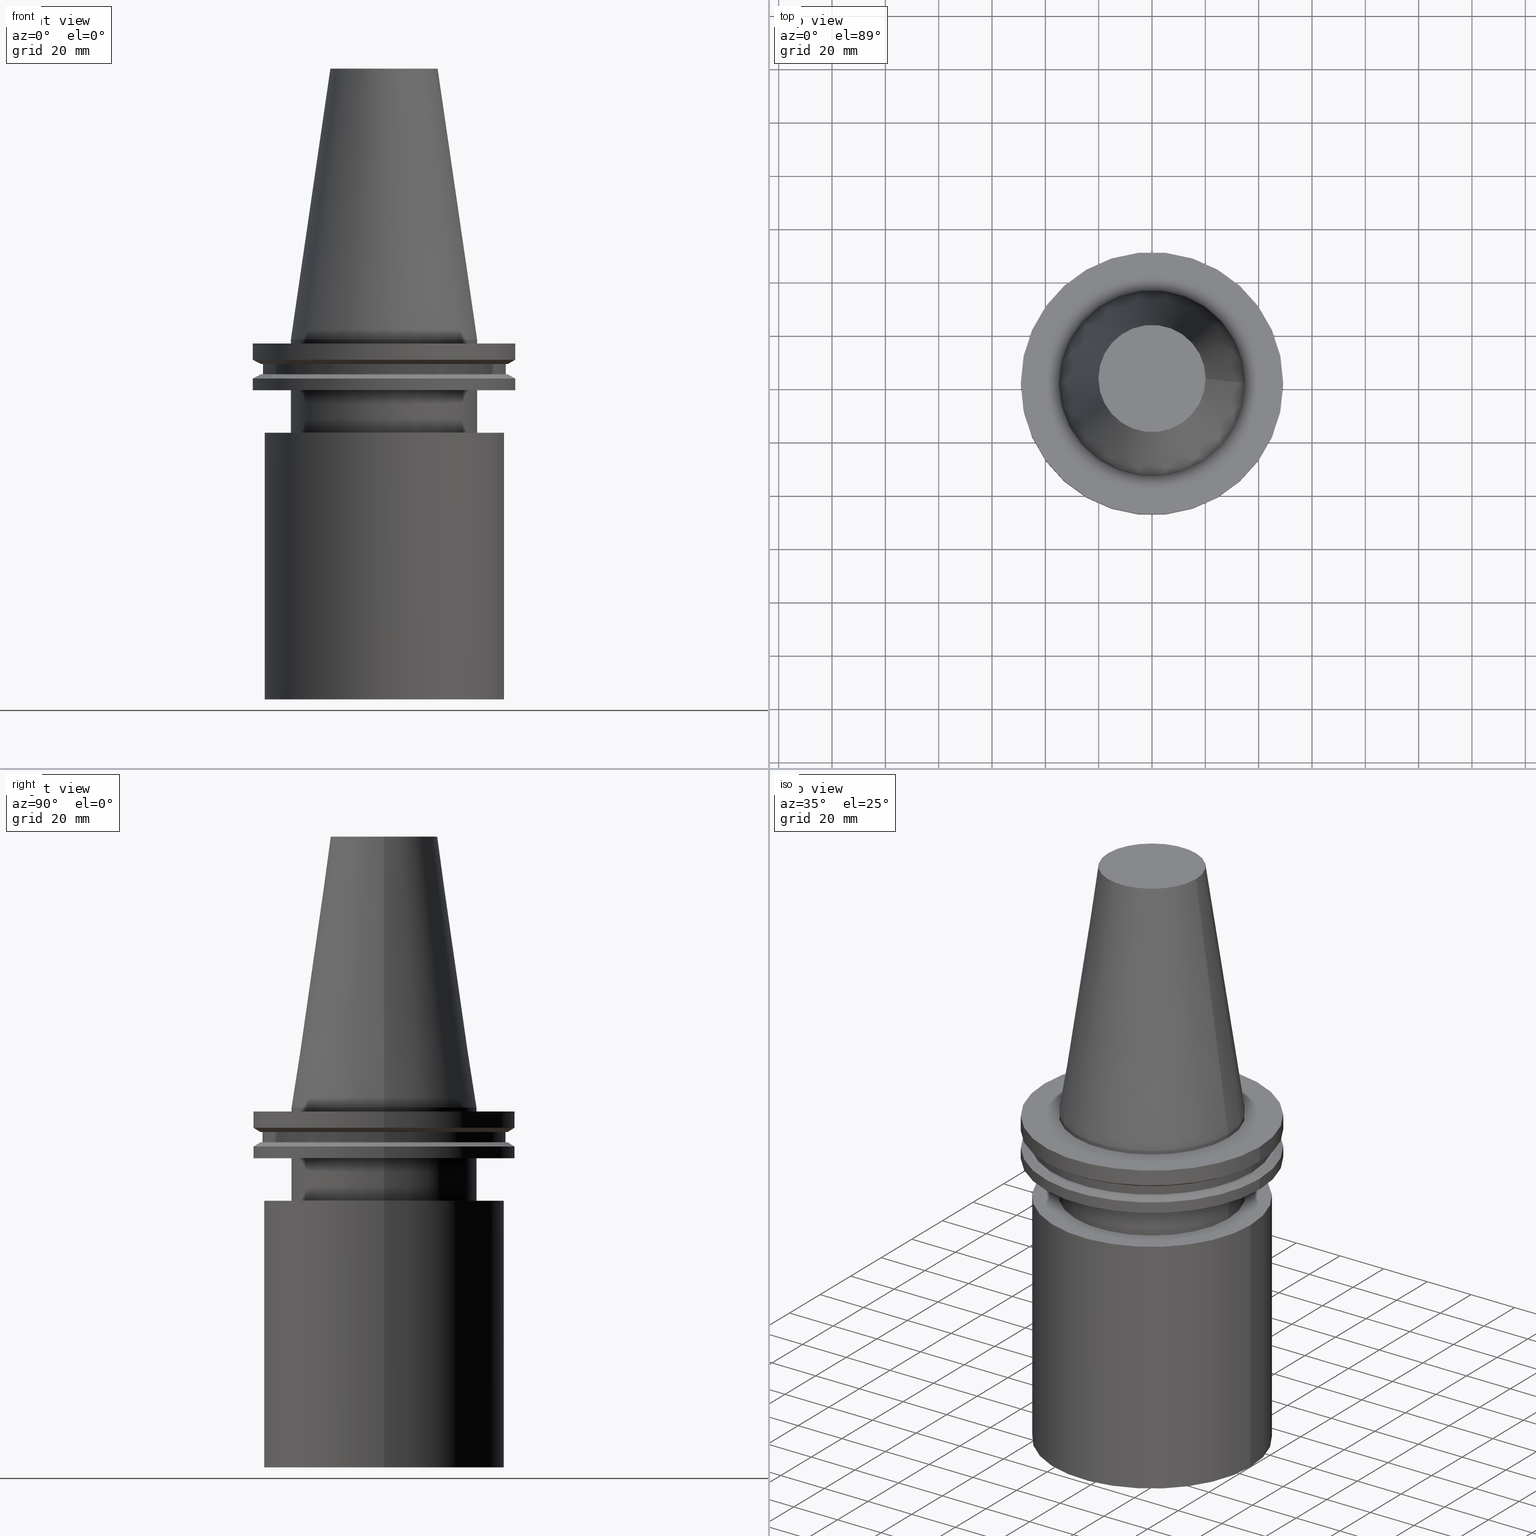
[diagram: canonical four-view strip — front | top / right | iso, engineering-drawing reading convention]
A machine part, canonical four-view strip (front | top / right | iso — engineering-drawing reading convention). The complete STEP part file that produces these views, byte-faithful:
ISO-10303-21;
HEADER;
FILE_DESCRIPTION (( 'STEP AP203' ),
    '1' );
FILE_NAME ('11.368.675.stp',
    '2022-03-09T15:23:33',
    ( '' ),
    ( '' ),
    'SwSTEP 2.0',
    'SolidWorks 2021',
    '' );
FILE_SCHEMA (( 'CONFIG_CONTROL_DESIGN' ));
ENDSEC;

DATA;
#1 = ORIENTED_EDGE ( 'NONE', *, *, #125, .F. ) ;
#2 = PLANE ( 'NONE',  #259 ) ;
#3 = ORIENTED_EDGE ( 'NONE', *, *, #329, .T. ) ;
#4 = ADVANCED_FACE ( 'NONE', ( #342, #66 ), #22, .T. ) ;
#5 =( NAMED_UNIT ( * ) SI_UNIT ( $, .STERADIAN. ) SOLID_ANGLE_UNIT ( ) );
#6 = FACE_OUTER_BOUND ( 'NONE', #307, .T. ) ;
#7 = AXIS2_PLACEMENT_3D ( 'NONE', #356, #365, #82 ) ;
#8 = EDGE_CURVE ( 'NONE', #114, #114, #382, .T. ) ;
#9 = DIRECTION ( 'NONE',  ( -0.000000000000000000, -0.000000000000000000, 1.000000000000000000 ) ) ;
#10 = CARTESIAN_POINT ( 'NONE',  ( 0.000000000000000000, 0.000000000000000000, -7.602389855251287187 ) ) ;
#11 = FACE_OUTER_BOUND ( 'NONE', #304, .T. ) ;
#12 = PRODUCT ( '11.368.675', '11.368.675', '', ( #217 ) ) ;
#13 = DIRECTION ( 'NONE',  ( 1.000000000000000000, 0.000000000000000000, 0.000000000000000000 ) ) ;
#14 = ADVANCED_FACE ( 'NONE', ( #94, #215 ), #338, .T. ) ;
#15 = DIRECTION ( 'NONE',  ( 1.000000000000000000, 0.000000000000000000, 0.000000000000000000 ) ) ;
#16 = ORGANIZATION ( 'UNSPECIFIED', 'UNSPECIFIED', '' ) ;
#17 = DIRECTION ( 'NONE',  ( -0.000000000000000000, -0.000000000000000000, 1.000000000000000000 ) ) ;
#18 = APPROVAL_DATE_TIME ( #141, #364 ) ;
#19 = DIRECTION ( 'NONE',  ( -0.000000000000000000, -0.000000000000000000, 1.000000000000000000 ) ) ;
#20 = ADVANCED_FACE ( 'NONE', ( #188, #306 ), #2, .F. ) ;
#21 = EDGE_LOOP ( 'NONE', ( #184 ) ) ;
#22 = CONICAL_SURFACE ( 'NONE', #69, 49.21499999999998920, 1.047197551196554333 ) ;
#23 = DATE_TIME_ROLE ( 'creation_date' ) ;
#24 = FACE_OUTER_BOUND ( 'NONE', #34, .T. ) ;
#25 = ORIENTED_EDGE ( 'NONE', *, *, #298, .F. ) ;
#26 = DATE_AND_TIME ( #196, #384 ) ;
#27 = CARTESIAN_POINT ( 'NONE',  ( 49.21499999999999631, 0.000000000000000000, -1.499999999999987566 ) ) ;
#28 = CIRCLE ( 'NONE', #85, 34.92499999999999005 ) ;
#29 = CARTESIAN_POINT ( 'NONE',  ( 45.00000000000000000, 0.000000000000000000, -135.0000000000000000 ) ) ;
#30 = DIRECTION ( 'NONE',  ( -1.000000000000000000, 0.000000000000000000, 0.000000000000000000 ) ) ;
#31 = APPROVAL_PERSON_ORGANIZATION ( #226, #364, #112 ) ;
#32 = CARTESIAN_POINT ( 'NONE',  ( 34.92499999999999005, 0.000000000000000000, 0.000000000000000000 ) ) ;
#33 = EDGE_LOOP ( 'NONE', ( #3 ) ) ;
#34 = EDGE_LOOP ( 'NONE', ( #139 ) ) ;
#35 = EDGE_CURVE ( 'NONE', #140, #140, #122, .T. ) ;
#36 = EDGE_LOOP ( 'NONE', ( #204 ) ) ;
#37 = CC_DESIGN_APPROVAL ( #305, ( #315 ) ) ;
#38 = DIRECTION ( 'NONE',  ( 1.000000000000000000, 0.000000000000000000, 0.000000000000000000 ) ) ;
#39 = ADVANCED_FACE ( 'NONE', ( #6, #242 ), #102, .T. ) ;
#40 = APPROVAL_STATUS ( 'not_yet_approved' ) ;
#41 = DIRECTION ( 'NONE',  ( 1.000000000000000000, 0.000000000000000000, 0.000000000000000000 ) ) ;
#42 = FACE_OUTER_BOUND ( 'NONE', #263, .T. ) ;
#43 = APPROVAL_ROLE ( '' ) ;
#44 = DIRECTION ( 'NONE',  ( -0.000000000000000000, -0.000000000000000000, 1.000000000000000000 ) ) ;
#45 = DIRECTION ( 'NONE',  ( 1.000000000000000000, 0.000000000000000000, 0.000000000000000000 ) ) ;
#46 = EDGE_CURVE ( 'NONE', #86, #86, #275, .T. ) ;
#47 = CIRCLE ( 'NONE', #299, 45.00000000000000000 ) ;
#48 = APPROVAL_ROLE ( '' ) ;
#49 = FACE_OUTER_BOUND ( 'NONE', #158, .T. ) ;
#50 = CARTESIAN_POINT ( 'NONE',  ( 34.92499999999999716, 0.000000000000000000, -19.04999999999999716 ) ) ;
#51 = DIRECTION ( 'NONE',  ( 1.000000000000000000, 0.000000000000000000, 0.000000000000000000 ) ) ;
#52 = CYLINDRICAL_SURFACE ( 'NONE', #251, 45.00000000000000000 ) ;
#53 = AXIS2_PLACEMENT_3D ( 'NONE', #189, #218, #38 ) ;
#54 = FACE_BOUND ( 'NONE', #144, .T. ) ;
#55 = LOCAL_TIME ( 9, 23, 33.00000000000000000, #260 ) ;
#56 = DIRECTION ( 'NONE',  ( 1.000000000000000000, 0.000000000000000000, 0.000000000000000000 ) ) ;
#57 = DIRECTION ( 'NONE',  ( 0.000000000000000000, 0.000000000000000000, 1.000000000000000000 ) ) ;
#58 = ORIENTED_EDGE ( 'NONE', *, *, #46, .F. ) ;
#59 = PERSON_AND_ORGANIZATION_ROLE ( 'design_owner' ) ;
#60 = ORIENTED_EDGE ( 'NONE', *, *, #361, .T. ) ;
#61 = CARTESIAN_POINT ( 'NONE',  ( 49.21499999999998920, 0.000000000000000000, -14.65761014474876944 ) ) ;
#62 = ORIENTED_EDGE ( 'NONE', *, *, #243, .T. ) ;
#63 = CIRCLE ( 'NONE', #264, 20.10819343178871321 ) ;
#64 = CARTESIAN_POINT ( 'NONE',  ( 0.000000000000000000, 0.000000000000000000, 101.5999999999999943 ) ) ;
#65 = AXIS2_PLACEMENT_3D ( 'NONE', #10, #219, #67 ) ;
#66 = FACE_OUTER_BOUND ( 'NONE', #244, .T. ) ;
#67 = DIRECTION ( 'NONE',  ( 1.000000000000000000, 0.000000000000000000, 0.000000000000000000 ) ) ;
#68 = CARTESIAN_POINT ( 'NONE',  ( 0.000000000000000000, 0.000000000000000000, -1.499999999999987566 ) ) ;
#69 = AXIS2_PLACEMENT_3D ( 'NONE', #153, #335, #30 ) ;
#70 = MANIFOLD_SOLID_BREP ( 'CKB', #311 ) ;
#71 = DIRECTION ( 'NONE',  ( 1.000000000000000000, 0.000000000000000000, 0.000000000000000000 ) ) ;
#72 = ADVANCED_FACE ( 'NONE', ( #11 ), #128, .F. ) ;
#73 = PLANE ( 'NONE',  #341 ) ;
#74 = APPROVAL_STATUS ( 'not_yet_approved' ) ;
#75 = DIRECTION ( 'NONE',  ( 1.000000000000000000, 0.000000000000000000, 0.000000000000000000 ) ) ;
#76 = AXIS2_PLACEMENT_3D ( 'NONE', #131, #9, #166 ) ;
#77 = COORDINATED_UNIVERSAL_TIME_OFFSET ( 6, 0, .BEHIND. ) ;
#78 = VERTEX_POINT ( 'NONE', #197 ) ;
#79 = ORIENTED_EDGE ( 'NONE', *, *, #313, .F. ) ;
#80 = CC_DESIGN_DATE_AND_TIME_ASSIGNMENT ( #145, #23, ( #267 ) ) ;
#81 = COORDINATED_UNIVERSAL_TIME_OFFSET ( 6, 0, .BEHIND. ) ;
#82 = DIRECTION ( 'NONE',  ( -1.000000000000000000, 0.000000000000000000, 0.000000000000000000 ) ) ;
#83 = DIRECTION ( 'NONE',  ( -0.000000000000000000, -0.000000000000000000, 1.000000000000000000 ) ) ;
#84 = EDGE_LOOP ( 'NONE', ( #343 ) ) ;
#85 = AXIS2_PLACEMENT_3D ( 'NONE', #109, #233, #257 ) ;
#86 = VERTEX_POINT ( 'NONE', #177 ) ;
#87 = DIRECTION ( 'NONE',  ( 1.000000000000000000, 0.000000000000000000, 0.000000000000000000 ) ) ;
#88 = EDGE_CURVE ( 'NONE', #297, #297, #216, .T. ) ;
#89 = ORIENTED_EDGE ( 'NONE', *, *, #88, .F. ) ;
#90 = EDGE_LOOP ( 'NONE', ( #277 ) ) ;
#91 = AXIS2_PLACEMENT_3D ( 'NONE', #68, #350, #191 ) ;
#92 = ADVANCED_FACE ( 'NONE', ( #42 ), #314, .F. ) ;
#93 = ORIENTED_EDGE ( 'NONE', *, *, #175, .F. ) ;
#94 = FACE_OUTER_BOUND ( 'NONE', #213, .T. ) ;
#95 = DIRECTION ( 'NONE',  ( -1.000000000000000000, 0.000000000000000000, -0.000000000000000000 ) ) ;
#96 = CIRCLE ( 'NONE', #393, 34.92499999999999716 ) ;
#97 = DIRECTION ( 'NONE',  ( -0.000000000000000000, -0.000000000000000000, 1.000000000000000000 ) ) ;
#98 = PRODUCT_RELATED_PRODUCT_CATEGORY ( 'detail', '', ( #12 ) ) ;
#99 = FACE_OUTER_BOUND ( 'NONE', #120, .T. ) ;
#100 = CARTESIAN_POINT ( 'NONE',  ( 0.000000000000000000, 0.000000000000000000, 101.5999999999999943 ) ) ;
#101 = ADVANCED_FACE ( 'NONE', ( #378, #99 ), #280, .T. ) ;
#102 = CONICAL_SURFACE ( 'NONE', #208, 46.43919780457007818, 1.047197551196575205 ) ;
#103 = DIRECTION ( 'NONE',  ( -0.000000000000000000, -0.000000000000000000, 1.000000000000000000 ) ) ;
#104 = DIRECTION ( 'NONE',  ( -0.000000000000000000, -0.000000000000000000, 1.000000000000000000 ) ) ;
#105 = CC_DESIGN_APPROVAL ( #195, ( #267 ) ) ;
#106 = PRODUCT_DEFINITION_SHAPE ( 'NONE', 'NONE',  #267 ) ;
#107 = FACE_OUTER_BOUND ( 'NONE', #33, .T. ) ;
#108 = PERSON_AND_ORGANIZATION ( #170, #16 ) ;
#109 = CARTESIAN_POINT ( 'NONE',  ( 0.000000000000000000, 0.000000000000000000, 0.000000000000000000 ) ) ;
#110 = ORIENTED_EDGE ( 'NONE', *, *, #175, .T. ) ;
#111 = DESIGN_CONTEXT ( 'detailed design', #172, 'design' ) ;
#112 = APPROVAL_ROLE ( '' ) ;
#113 = DIRECTION ( 'NONE',  ( 1.000000000000000000, 0.000000000000000000, 0.000000000000000000 ) ) ;
#114 = VERTEX_POINT ( 'NONE', #229 ) ;
#115 = AXIS2_PLACEMENT_3D ( 'NONE', #388, #359, #199 ) ;
#116 = AXIS2_PLACEMENT_3D ( 'NONE', #379, #44, #164 ) ;
#117 = CARTESIAN_POINT ( 'NONE',  ( 0.000000000000000000, 0.000000000000000000, -135.0000000000000000 ) ) ;
#118 = CARTESIAN_POINT ( 'NONE',  ( 46.43919780457007818, 0.000000000000000000, -13.05499999999999794 ) ) ;
#119 =( NAMED_UNIT ( * ) PLANE_ANGLE_UNIT ( ) SI_UNIT ( $, .RADIAN. ) );
#120 = EDGE_LOOP ( 'NONE', ( #238 ) ) ;
#121 = EDGE_LOOP ( 'NONE', ( #124 ) ) ;
#122 = CIRCLE ( 'NONE', #53, 46.43919780457007818 ) ;
#123 = ORIENTED_EDGE ( 'NONE', *, *, #298, .T. ) ;
#124 = ORIENTED_EDGE ( 'NONE', *, *, #88, .T. ) ;
#125 = EDGE_CURVE ( 'NONE', #265, #265, #363, .T. ) ;
#126 = DIRECTION ( 'NONE',  ( 1.000000000000000000, 0.000000000000000000, 0.000000000000000000 ) ) ;
#127 = CIRCLE ( 'NONE', #317, 45.64500000000000313 ) ;
#128 = PLANE ( 'NONE',  #246 ) ;
#129 = CYLINDRICAL_SURFACE ( 'NONE', #380, 45.64500000000000313 ) ;
#130 = ADVANCED_FACE ( 'NONE', ( #346, #224 ), #129, .T. ) ;
#131 = CARTESIAN_POINT ( 'NONE',  ( 0.000000000000000000, 0.000000000000000000, -9.204999999999991189 ) ) ;
#132 = AXIS2_PLACEMENT_3D ( 'NONE', #376, #97, #41 ) ;
#133 = PLANE ( 'NONE',  #168 ) ;
#134 = CC_DESIGN_PERSON_AND_ORGANIZATION_ASSIGNMENT ( #228, #352, ( #315 ) ) ;
#135 = VERTEX_POINT ( 'NONE', #256 ) ;
#136 = EDGE_LOOP ( 'NONE', ( #93 ) ) ;
#137 = DATE_TIME_ROLE ( 'classification_date' ) ;
#138 = FACE_OUTER_BOUND ( 'NONE', #268, .T. ) ;
#139 = ORIENTED_EDGE ( 'NONE', *, *, #46, .T. ) ;
#140 = VERTEX_POINT ( 'NONE', #261 ) ;
#141 = DATE_AND_TIME ( #255, #210 ) ;
#142 = FACE_OUTER_BOUND ( 'NONE', #84, .T. ) ;
#143 = LOCAL_TIME ( 9, 23, 33.00000000000000000, #81 ) ;
#144 = EDGE_LOOP ( 'NONE', ( #369 ) ) ;
#145 = DATE_AND_TIME ( #295, #55 ) ;
#146 = CYLINDRICAL_SURFACE ( 'NONE', #155, 34.92499999999999005 ) ;
#147 = ORIENTED_EDGE ( 'NONE', *, *, #35, .F. ) ;
#148 = CIRCLE ( 'NONE', #266, 45.00000000000000000 ) ;
#149 = ORIENTED_EDGE ( 'NONE', *, *, #329, .F. ) ;
#150 = DIRECTION ( 'NONE',  ( 1.000000000000000000, 0.000000000000000000, 0.000000000000000000 ) ) ;
#151 = CC_DESIGN_PERSON_AND_ORGANIZATION_ASSIGNMENT ( #337, #59, ( #12 ) ) ;
#152 = CARTESIAN_POINT ( 'NONE',  ( 0.000000000000000000, 0.000000000000000000, -19.04999999999999716 ) ) ;
#153 = CARTESIAN_POINT ( 'NONE',  ( 0.000000000000000000, 0.000000000000000000, -14.65761014474876944 ) ) ;
#154 = CC_DESIGN_PERSON_AND_ORGANIZATION_ASSIGNMENT ( #355, #201, ( #160 ) ) ;
#155 = AXIS2_PLACEMENT_3D ( 'NONE', #323, #332, #15 ) ;
#156 = VERTEX_POINT ( 'NONE', #32 ) ;
#157 = ORIENTED_EDGE ( 'NONE', *, *, #243, .F. ) ;
#158 = EDGE_LOOP ( 'NONE', ( #89 ) ) ;
#159 = EDGE_CURVE ( 'NONE', #135, #135, #274, .T. ) ;
#160 = PRODUCT_DEFINITION_FORMATION_WITH_SPECIFIED_SOURCE ( 'ANY', '', #12, .NOT_KNOWN. ) ;
#161 = CARTESIAN_POINT ( 'NONE',  ( 0.000000000000000000, 45.64500000000000313, -13.05499999999999794 ) ) ;
#162 = CARTESIAN_POINT ( 'NONE',  ( 0.000000000000000000, 0.000000000000000000, 101.5999999999999801 ) ) ;
#163 = APPROVAL_DATE_TIME ( #222, #195 ) ;
#164 = DIRECTION ( 'NONE',  ( 1.000000000000000000, 0.000000000000000000, 0.000000000000000000 ) ) ;
#165 = PERSON_AND_ORGANIZATION ( #170, #16 ) ;
#166 = DIRECTION ( 'NONE',  ( 1.000000000000000000, 0.000000000000000000, 0.000000000000000000 ) ) ;
#167 = DIRECTION ( 'NONE',  ( -0.000000000000000000, -0.000000000000000000, 1.000000000000000000 ) ) ;
#168 = AXIS2_PLACEMENT_3D ( 'NONE', #349, #320, #308 ) ;
#169 = FACE_OUTER_BOUND ( 'NONE', #205, .T. ) ;
#170 = PERSON ( 'UNSPECIFIED', 'UNSPECIFIED', 'UNSPECIFIED', ('UNSPECIFIED'), ('UNSPECIFIED'), ('UNSPECIFIED') ) ;
#171 = FACE_BOUND ( 'NONE', #371, .T. ) ;
#172 = APPLICATION_CONTEXT ( 'configuration controlled 3d designs of mechanical parts and assemblies' ) ;
#173 = DIRECTION ( 'NONE',  ( -1.000000000000000000, 0.000000000000000000, -0.000000000000000000 ) ) ;
#174 = DIRECTION ( 'NONE',  ( 1.000000000000000000, 0.000000000000000000, 0.000000000000000000 ) ) ;
#175 = EDGE_CURVE ( 'NONE', #385, #385, #391, .T. ) ;
#176 = PERSON_AND_ORGANIZATION_ROLE ( 'creator' ) ;
#177 = CARTESIAN_POINT ( 'NONE',  ( 34.92499999999999005, 0.000000000000000000, -1.499999999999987566 ) ) ;
#178 = EDGE_LOOP ( 'NONE', ( #25 ) ) ;
#179 = CARTESIAN_POINT ( 'NONE',  ( 0.000000000000000000, 0.000000000000000000, -35.00000000000000000 ) ) ;
#180 = EDGE_LOOP ( 'NONE', ( #200 ) ) ;
#181 = CC_DESIGN_PERSON_AND_ORGANIZATION_ASSIGNMENT ( #165, #176, ( #267 ) ) ;
#182 = CIRCLE ( 'NONE', #206, 49.21499999999998920 ) ;
#183 = VERTEX_POINT ( 'NONE', #29 ) ;
#184 = ORIENTED_EDGE ( 'NONE', *, *, #313, .T. ) ;
#185 = EDGE_LOOP ( 'NONE', ( #157 ) ) ;
#186 = EDGE_LOOP ( 'NONE', ( #147 ) ) ;
#187 = AXIS2_PLACEMENT_3D ( 'NONE', #192, #167, #45 ) ;
#188 = FACE_BOUND ( 'NONE', #180, .T. ) ;
#189 = CARTESIAN_POINT ( 'NONE',  ( 0.000000000000000000, 0.000000000000000000, -9.204999999999991189 ) ) ;
#190 = FACE_OUTER_BOUND ( 'NONE', #36, .T. ) ;
#191 = DIRECTION ( 'NONE',  ( 1.000000000000000000, 0.000000000000000000, 0.000000000000000000 ) ) ;
#192 = CARTESIAN_POINT ( 'NONE',  ( 0.000000000000000000, 0.000000000000000000, -35.00000000000000000 ) ) ;
#193 = CARTESIAN_POINT ( 'NONE',  ( 0.000000000000000000, 0.000000000000000000, -35.00000000000000000 ) ) ;
#194 = DIRECTION ( 'NONE',  ( -0.000000000000000000, -0.000000000000000000, 1.000000000000000000 ) ) ;
#195 = APPROVAL ( #40, 'UNSPECIFIED' ) ;
#196 = CALENDAR_DATE ( 2022, 9, 3 ) ;
#197 = CARTESIAN_POINT ( 'NONE',  ( 45.00000000000000000, 0.000000000000000000, -35.00000000000000000 ) ) ;
#198 = CALENDAR_DATE ( 2022, 9, 3 ) ;
#199 = DIRECTION ( 'NONE',  ( 1.000000000000000000, 0.000000000000000000, 0.000000000000000000 ) ) ;
#200 = ORIENTED_EDGE ( 'NONE', *, *, #361, .F. ) ;
#201 = PERSON_AND_ORGANIZATION_ROLE ( 'design_supplier' ) ;
#202 = ADVANCED_FACE ( 'NONE', ( #190, #250 ), #133, .F. ) ;
#203 = FACE_OUTER_BOUND ( 'NONE', #90, .T. ) ;
#204 = ORIENTED_EDGE ( 'NONE', *, *, #8, .F. ) ;
#205 = EDGE_LOOP ( 'NONE', ( #301 ) ) ;
#206 = AXIS2_PLACEMENT_3D ( 'NONE', #390, #19, #56 ) ;
#207 = CARTESIAN_POINT ( 'NONE',  ( 0.000000000000000000, 0.000000000000000000, 0.000000000000000000 ) ) ;
#208 = AXIS2_PLACEMENT_3D ( 'NONE', #367, #225, #254 ) ;
#209 = FACE_OUTER_BOUND ( 'NONE', #21, .T. ) ;
#210 = LOCAL_TIME ( 9, 23, 33.00000000000000000, #77 ) ;
#211 = DIRECTION ( 'NONE',  ( 1.000000000000000000, 0.000000000000000000, 0.000000000000000000 ) ) ;
#212 = EDGE_LOOP ( 'NONE', ( #110 ) ) ;
#213 = EDGE_LOOP ( 'NONE', ( #324 ) ) ;
#214 = VERTEX_POINT ( 'NONE', #241 ) ;
#215 = FACE_OUTER_BOUND ( 'NONE', #327, .T. ) ;
#216 = CIRCLE ( 'NONE', #116, 49.21499999999999631 ) ;
#217 = MECHANICAL_CONTEXT ( 'NONE', #310, 'mechanical' ) ;
#218 = DIRECTION ( 'NONE',  ( -0.000000000000000000, -0.000000000000000000, 1.000000000000000000 ) ) ;
#219 = DIRECTION ( 'NONE',  ( -0.000000000000000000, -0.000000000000000000, 1.000000000000000000 ) ) ;
#220 = ADVANCED_FACE ( 'NONE', ( #281, #252 ), #73, .F. ) ;
#221 = DIRECTION ( 'NONE',  ( 1.000000000000000000, 0.000000000000000000, 0.000000000000000000 ) ) ;
#222 = DATE_AND_TIME ( #377, #331 ) ;
#223 = DIRECTION ( 'NONE',  ( 0.000000000000000000, -0.000000000000000000, 1.000000000000000000 ) ) ;
#224 = FACE_OUTER_BOUND ( 'NONE', #340, .T. ) ;
#225 = DIRECTION ( 'NONE',  ( -0.000000000000000000, -0.000000000000000000, 1.000000000000000000 ) ) ;
#226 = PERSON_AND_ORGANIZATION ( #170, #16 ) ;
#227 = CARTESIAN_POINT ( 'NONE',  ( 45.64500000000000313, 0.000000000000000000, -9.204999999999991189 ) ) ;
#228 = PERSON_AND_ORGANIZATION ( #170, #16 ) ;
#229 = CARTESIAN_POINT ( 'NONE',  ( 49.21499999999998920, 0.000000000000000000, -19.04999999999999716 ) ) ;
#230 = EDGE_CURVE ( 'NONE', #78, #78, #148, .T. ) ;
#231 = DIRECTION ( 'NONE',  ( -1.000000000000000000, 0.000000000000000000, -0.000000000000000000 ) ) ;
#232 = AXIS2_PLACEMENT_3D ( 'NONE', #354, #293, #231 ) ;
#233 = DIRECTION ( 'NONE',  ( -0.000000000000000000, -0.000000000000000000, 1.000000000000000000 ) ) ;
#234 =( GEOMETRIC_REPRESENTATION_CONTEXT ( 3 ) GLOBAL_UNCERTAINTY_ASSIGNED_CONTEXT ( ( #312 ) ) GLOBAL_UNIT_ASSIGNED_CONTEXT ( ( #236, #119, #5 ) ) REPRESENTATION_CONTEXT ( 'NONE', 'WORKASPACE' ) );
#235 = FACE_BOUND ( 'NONE', #294, .T. ) ;
#236 =( LENGTH_UNIT ( ) NAMED_UNIT ( * ) SI_UNIT ( .MILLI., .METRE. ) );
#237 = APPROVAL_PERSON_ORGANIZATION ( #108, #305, #48 ) ;
#238 = ORIENTED_EDGE ( 'NONE', *, *, #159, .T. ) ;
#239 = DATE_AND_TIME ( #198, #143 ) ;
#240 = EDGE_LOOP ( 'NONE', ( #62 ) ) ;
#241 = CARTESIAN_POINT ( 'NONE',  ( 45.64500000000000313, 0.000000000000000000, -13.05499999999999794 ) ) ;
#242 = FACE_BOUND ( 'NONE', #333, .T. ) ;
#243 = EDGE_CURVE ( 'NONE', #322, #322, #96, .T. ) ;
#244 = EDGE_LOOP ( 'NONE', ( #278 ) ) ;
#245 = EDGE_LOOP ( 'NONE', ( #123 ) ) ;
#246 = AXIS2_PLACEMENT_3D ( 'NONE', #309, #223, #279 ) ;
#247 = CYLINDRICAL_SURFACE ( 'NONE', #132, 49.21499999999999631 ) ;
#248 = COORDINATED_UNIVERSAL_TIME_OFFSET ( 6, 0, .BEHIND. ) ;
#249 = CARTESIAN_POINT ( 'NONE',  ( 0.000000000000000000, 20.10819343178871321, 101.5999999999999943 ) ) ;
#250 = FACE_BOUND ( 'NONE', #240, .T. ) ;
#251 = AXIS2_PLACEMENT_3D ( 'NONE', #207, #17, #174 ) ;
#252 = FACE_BOUND ( 'NONE', #212, .T. ) ;
#253 = ADVANCED_FACE ( 'NONE', ( #49, #169 ), #247, .T. ) ;
#254 = DIRECTION ( 'NONE',  ( 1.000000000000000000, 0.000000000000000000, 0.000000000000000000 ) ) ;
#255 = CALENDAR_DATE ( 2022, 9, 3 ) ;
#256 = CARTESIAN_POINT ( 'NONE',  ( 34.92499999999999716, 0.000000000000000000, -35.00000000000000000 ) ) ;
#257 = DIRECTION ( 'NONE',  ( 1.000000000000000000, 0.000000000000000000, 0.000000000000000000 ) ) ;
#258 = ORIENTED_EDGE ( 'NONE', *, *, #8, .T. ) ;
#259 = AXIS2_PLACEMENT_3D ( 'NONE', #161, #375, #95 ) ;
#260 = COORDINATED_UNIVERSAL_TIME_OFFSET ( 6, 0, .BEHIND. ) ;
#261 = CARTESIAN_POINT ( 'NONE',  ( 46.43919780457007818, 0.000000000000000000, -9.204999999999991189 ) ) ;
#262 = DIRECTION ( 'NONE',  ( 0.000000000000000000, 0.000000000000000000, -1.000000000000000000 ) ) ;
#263 = EDGE_LOOP ( 'NONE', ( #330 ) ) ;
#264 = AXIS2_PLACEMENT_3D ( 'NONE', #162, #83, #51 ) ;
#265 = VERTEX_POINT ( 'NONE', #392 ) ;
#266 = AXIS2_PLACEMENT_3D ( 'NONE', #193, #316, #13 ) ;
#267 = PRODUCT_DEFINITION ( 'UNKNOWN', '', #160, #111 ) ;
#268 = EDGE_LOOP ( 'NONE', ( #149 ) ) ;
#269 = APPLICATION_PROTOCOL_DEFINITION ( 'international standard', 'config_control_design', 1994, #310 ) ;
#270 = DIRECTION ( 'NONE',  ( 1.000000000000000000, 0.000000000000000000, 0.000000000000000000 ) ) ;
#271 = APPROVAL_DATE_TIME ( #239, #305 ) ;
#272 = DIRECTION ( 'NONE',  ( -0.000000000000000000, -0.000000000000000000, 1.000000000000000000 ) ) ;
#273 = EDGE_CURVE ( 'NONE', #394, #394, #63, .T. ) ;
#274 = CIRCLE ( 'NONE', #187, 34.92499999999999716 ) ;
#275 = CIRCLE ( 'NONE', #91, 34.92499999999999005 ) ;
#276 = ORIENTED_EDGE ( 'NONE', *, *, #35, .T. ) ;
#277 = ORIENTED_EDGE ( 'NONE', *, *, #230, .F. ) ;
#278 = ORIENTED_EDGE ( 'NONE', *, *, #395, .T. ) ;
#279 = DIRECTION ( 'NONE',  ( 1.000000000000000000, 0.000000000000000000, 0.000000000000000000 ) ) ;
#280 = CYLINDRICAL_SURFACE ( 'NONE', #283, 34.92499999999999716 ) ;
#281 = FACE_OUTER_BOUND ( 'NONE', #186, .T. ) ;
#282 = ADVANCED_FACE ( 'NONE', ( #203, #209 ), #52, .T. ) ;
#283 = AXIS2_PLACEMENT_3D ( 'NONE', #100, #194, #221 ) ;
#284 = CC_DESIGN_PERSON_AND_ORGANIZATION_ASSIGNMENT ( #358, #321, ( #160 ) ) ;
#285 = PERSON_AND_ORGANIZATION ( #170, #16 ) ;
#286 = AXIS2_PLACEMENT_3D ( 'NONE', #179, #262, #173 ) ;
#287 = CARTESIAN_POINT ( 'NONE',  ( 0.000000000000000000, 46.43919780457007818, -9.204999999999998295 ) ) ;
#288 = DIRECTION ( 'NONE',  ( 0.000000000000000000, -0.000000000000000000, 1.000000000000000000 ) ) ;
#289 = DIRECTION ( 'NONE',  ( -0.000000000000000000, -0.000000000000000000, 1.000000000000000000 ) ) ;
#290 = APPROVAL_STATUS ( 'not_yet_approved' ) ;
#291 = CARTESIAN_POINT ( 'NONE',  ( 0.000000000000000000, 0.000000000000000000, -13.05499999999999794 ) ) ;
#292 = AXIS2_PLACEMENT_3D ( 'NONE', #152, #373, #211 ) ;
#293 = DIRECTION ( 'NONE',  ( 0.000000000000000000, 0.000000000000000000, -1.000000000000000000 ) ) ;
#294 = EDGE_LOOP ( 'NONE', ( #303 ) ) ;
#295 = CALENDAR_DATE ( 2022, 9, 3 ) ;
#296 = CC_DESIGN_SECURITY_CLASSIFICATION ( #315, ( #160 ) ) ;
#297 = VERTEX_POINT ( 'NONE', #27 ) ;
#298 = EDGE_CURVE ( 'NONE', #372, #372, #326, .T. ) ;
#299 = AXIS2_PLACEMENT_3D ( 'NONE', #117, #328, #87 ) ;
#300 = CARTESIAN_POINT ( 'NONE',  ( 20.10819343178871321, 0.000000000000000000, 101.5999999999999801 ) ) ;
#301 = ORIENTED_EDGE ( 'NONE', *, *, #125, .T. ) ;
#302 = APPLICATION_PROTOCOL_DEFINITION ( 'international standard', 'config_control_design', 1994, #172 ) ;
#303 = ORIENTED_EDGE ( 'NONE', *, *, #273, .F. ) ;
#304 = EDGE_LOOP ( 'NONE', ( #79 ) ) ;
#305 = APPROVAL ( #74, 'UNSPECIFIED' ) ;
#306 = FACE_OUTER_BOUND ( 'NONE', #245, .T. ) ;
#307 = EDGE_LOOP ( 'NONE', ( #1 ) ) ;
#308 = DIRECTION ( 'NONE',  ( 1.000000000000000000, 0.000000000000000000, 0.000000000000000000 ) ) ;
#309 = CARTESIAN_POINT ( 'NONE',  ( 0.000000000000000000, 45.00000000000000000, -135.0000000000000000 ) ) ;
#310 = APPLICATION_CONTEXT ( 'configuration controlled 3d designs of mechanical parts and assemblies' ) ;
#311 = CLOSED_SHELL ( 'NONE', ( #336, #92, #101, #202, #14, #4, #20, #130, #220, #39, #253, #344, #368, #374, #282, #72 ) ) ;
#312 = UNCERTAINTY_MEASURE_WITH_UNIT (LENGTH_MEASURE( 1.000000000000000082E-05 ), #236, 'distance_accuracy_value', 'NONE');
#313 = EDGE_CURVE ( 'NONE', #183, #183, #47, .T. ) ;
#314 = PLANE ( 'NONE',  #319 ) ;
#315 = SECURITY_CLASSIFICATION ( '', '', #386 ) ;
#316 = DIRECTION ( 'NONE',  ( -0.000000000000000000, -0.000000000000000000, 1.000000000000000000 ) ) ;
#317 = AXIS2_PLACEMENT_3D ( 'NONE', #291, #289, #113 ) ;
#318 = CC_DESIGN_DATE_AND_TIME_ASSIGNMENT ( #26, #137, ( #315 ) ) ;
#319 = AXIS2_PLACEMENT_3D ( 'NONE', #249, #381, #347 ) ;
#320 = DIRECTION ( 'NONE',  ( 0.000000000000000000, -0.000000000000000000, 1.000000000000000000 ) ) ;
#321 = PERSON_AND_ORGANIZATION_ROLE ( 'creator' ) ;
#322 = VERTEX_POINT ( 'NONE', #50 ) ;
#323 = CARTESIAN_POINT ( 'NONE',  ( 0.000000000000000000, 0.000000000000000000, 101.5999999999999943 ) ) ;
#324 = ORIENTED_EDGE ( 'NONE', *, *, #395, .F. ) ;
#325 = FACE_OUTER_BOUND ( 'NONE', #121, .T. ) ;
#326 = CIRCLE ( 'NONE', #115, 46.43919780457007818 ) ;
#327 = EDGE_LOOP ( 'NONE', ( #258 ) ) ;
#328 = DIRECTION ( 'NONE',  ( -0.000000000000000000, -0.000000000000000000, 1.000000000000000000 ) ) ;
#329 = EDGE_CURVE ( 'NONE', #156, #156, #28, .T. ) ;
#330 = ORIENTED_EDGE ( 'NONE', *, *, #273, .T. ) ;
#331 = LOCAL_TIME ( 9, 23, 33.00000000000000000, #248 ) ;
#332 = DIRECTION ( 'NONE',  ( -0.000000000000000000, -0.000000000000000000, 1.000000000000000000 ) ) ;
#333 = EDGE_LOOP ( 'NONE', ( #276 ) ) ;
#334 = CARTESIAN_POINT ( 'NONE',  ( 0.000000000000000000, 0.000000000000000000, 0.000000000000000000 ) ) ;
#335 = DIRECTION ( 'NONE',  ( 0.000000000000000000, 0.000000000000000000, -1.000000000000000000 ) ) ;
#336 = ADVANCED_FACE ( 'NONE', ( #235, #107 ), #353, .T. ) ;
#337 = PERSON_AND_ORGANIZATION ( #170, #16 ) ;
#338 = CYLINDRICAL_SURFACE ( 'NONE', #348, 49.21499999999998920 ) ;
#339 = APPROVAL_PERSON_ORGANIZATION ( #285, #195, #43 ) ;
#340 = EDGE_LOOP ( 'NONE', ( #60 ) ) ;
#341 = AXIS2_PLACEMENT_3D ( 'NONE', #287, #288, #126 ) ;
#342 = FACE_BOUND ( 'NONE', #178, .T. ) ;
#343 = ORIENTED_EDGE ( 'NONE', *, *, #230, .T. ) ;
#344 = ADVANCED_FACE ( 'NONE', ( #171, #325 ), #362, .F. ) ;
#345 = CARTESIAN_POINT ( 'NONE',  ( 0.000000000000000000, 0.000000000000000000, 101.5999999999999943 ) ) ;
#346 = FACE_OUTER_BOUND ( 'NONE', #136, .T. ) ;
#347 = DIRECTION ( 'NONE',  ( -1.000000000000000000, 0.000000000000000000, -0.000000000000000000 ) ) ;
#348 = AXIS2_PLACEMENT_3D ( 'NONE', #64, #272, #270 ) ;
#349 = CARTESIAN_POINT ( 'NONE',  ( 0.000000000000000000, 49.21499999999998920, -19.04999999999999716 ) ) ;
#350 = DIRECTION ( 'NONE',  ( -0.000000000000000000, -0.000000000000000000, 1.000000000000000000 ) ) ;
#351 = ADVANCED_BREP_SHAPE_REPRESENTATION ( '11.368.675', ( #70, #389 ), #234 ) ;
#352 = PERSON_AND_ORGANIZATION_ROLE ( 'classification_officer' ) ;
#353 = CONICAL_SURFACE ( 'NONE', #7, 34.92499999999999005, 0.1448138465474119452 ) ;
#354 = CARTESIAN_POINT ( 'NONE',  ( 0.000000000000000000, 49.21499999999999631, -1.499999999999992895 ) ) ;
#355 = PERSON_AND_ORGANIZATION ( #170, #16 ) ;
#356 = CARTESIAN_POINT ( 'NONE',  ( 0.000000000000000000, 0.000000000000000000, 0.000000000000000000 ) ) ;
#357 = CC_DESIGN_APPROVAL ( #364, ( #160 ) ) ;
#358 = PERSON_AND_ORGANIZATION ( #170, #16 ) ;
#359 = DIRECTION ( 'NONE',  ( -0.000000000000000000, -0.000000000000000000, 1.000000000000000000 ) ) ;
#360 = COORDINATED_UNIVERSAL_TIME_OFFSET ( 6, 0, .BEHIND. ) ;
#361 = EDGE_CURVE ( 'NONE', #214, #214, #127, .T. ) ;
#362 = PLANE ( 'NONE',  #232 ) ;
#363 = CIRCLE ( 'NONE', #65, 49.21500000000000341 ) ;
#364 = APPROVAL ( #290, 'UNSPECIFIED' ) ;
#365 = DIRECTION ( 'NONE',  ( 0.000000000000000000, 0.000000000000000000, -1.000000000000000000 ) ) ;
#366 = SHAPE_DEFINITION_REPRESENTATION ( #106, #351 ) ;
#367 = CARTESIAN_POINT ( 'NONE',  ( 0.000000000000000000, 0.000000000000000000, -9.204999999999991189 ) ) ;
#368 = ADVANCED_FACE ( 'NONE', ( #138, #24 ), #146, .T. ) ;
#369 = ORIENTED_EDGE ( 'NONE', *, *, #159, .F. ) ;
#370 = VERTEX_POINT ( 'NONE', #61 ) ;
#371 = EDGE_LOOP ( 'NONE', ( #58 ) ) ;
#372 = VERTEX_POINT ( 'NONE', #118 ) ;
#373 = DIRECTION ( 'NONE',  ( -0.000000000000000000, -0.000000000000000000, 1.000000000000000000 ) ) ;
#374 = ADVANCED_FACE ( 'NONE', ( #54, #142 ), #387, .F. ) ;
#375 = DIRECTION ( 'NONE',  ( 0.000000000000000000, 0.000000000000000000, -1.000000000000000000 ) ) ;
#376 = CARTESIAN_POINT ( 'NONE',  ( 0.000000000000000000, 0.000000000000000000, 101.5999999999999943 ) ) ;
#377 = CALENDAR_DATE ( 2022, 9, 3 ) ;
#378 = FACE_OUTER_BOUND ( 'NONE', #185, .T. ) ;
#379 = CARTESIAN_POINT ( 'NONE',  ( 0.000000000000000000, 0.000000000000000000, -1.499999999999987566 ) ) ;
#380 = AXIS2_PLACEMENT_3D ( 'NONE', #345, #103, #71 ) ;
#381 = DIRECTION ( 'NONE',  ( 0.000000000000000000, 0.000000000000000000, -1.000000000000000000 ) ) ;
#382 = CIRCLE ( 'NONE', #292, 49.21499999999998920 ) ;
#383 = CARTESIAN_POINT ( 'NONE',  ( 0.000000000000000000, 0.000000000000000000, -19.04999999999999716 ) ) ;
#384 = LOCAL_TIME ( 9, 23, 33.00000000000000000, #360 ) ;
#385 = VERTEX_POINT ( 'NONE', #227 ) ;
#386 = SECURITY_CLASSIFICATION_LEVEL ( 'unclassified' ) ;
#387 = PLANE ( 'NONE',  #286 ) ;
#388 = CARTESIAN_POINT ( 'NONE',  ( 0.000000000000000000, 0.000000000000000000, -13.05499999999999794 ) ) ;
#389 = AXIS2_PLACEMENT_3D ( 'NONE', #334, #57, #150 ) ;
#390 = CARTESIAN_POINT ( 'NONE',  ( 0.000000000000000000, 0.000000000000000000, -14.65761014474876944 ) ) ;
#391 = CIRCLE ( 'NONE', #76, 45.64500000000000313 ) ;
#392 = CARTESIAN_POINT ( 'NONE',  ( 49.21500000000000341, 0.000000000000000000, -7.602389855251287187 ) ) ;
#393 = AXIS2_PLACEMENT_3D ( 'NONE', #383, #104, #75 ) ;
#394 = VERTEX_POINT ( 'NONE', #300 ) ;
#395 = EDGE_CURVE ( 'NONE', #370, #370, #182, .T. ) ;
ENDSEC;
END-ISO-10303-21;
